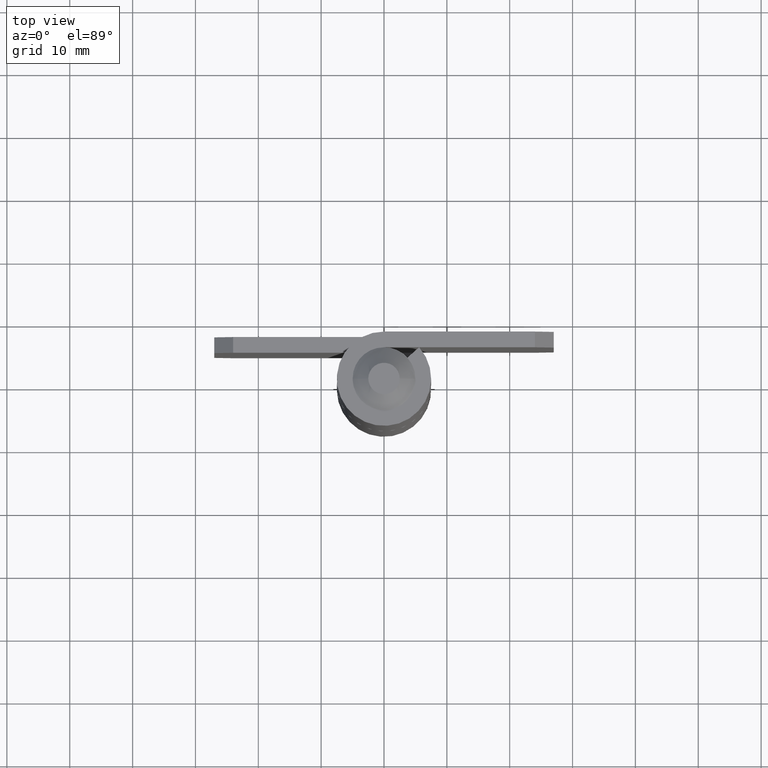
[diagram: clean part render]
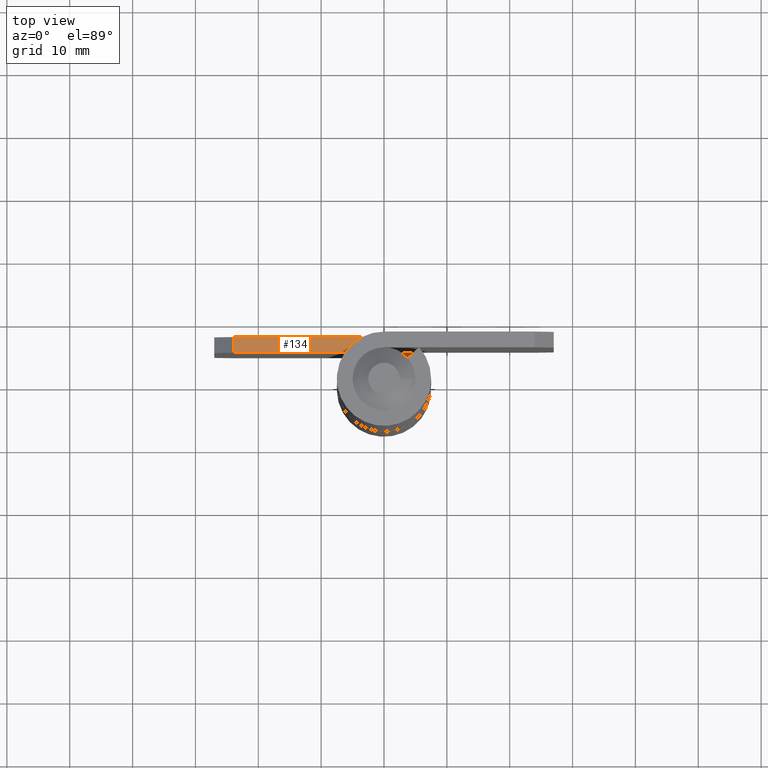
[diagram: same view with one face highlighted and labeled with its STEP entity id]
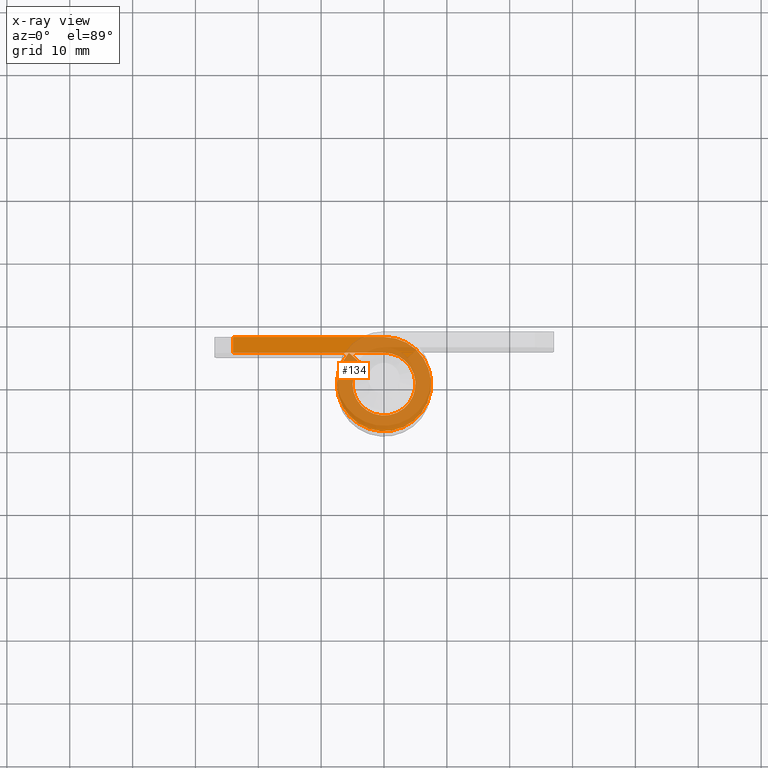
[diagram: x-ray of the same camera — body ghosted, the highlighted face saturated]
A machine part, top view. The second image highlights one B-rep face of the part: STEP entity #134.
The next image is the same camera in x-ray: the body ghosted, the highlighted face saturated — about 64% of this face is hidden behind the body in this view.
In plain terms, the highlighted planar face has unit normal (0, 0, -1).
Its self-contained STEP definition (entity closure, byte-faithful):
#134=ADVANCED_FACE('',(#360),#359,.F.);
#359=PLANE('',#546);
#360=FACE_OUTER_BOUND('',#547,.T.);
#543=CARTESIAN_POINT('',(1.29468851000E+001,-1.29731095773E+001,-1.42108547152E-014));
#544=DIRECTION('',(-0.00000000000E+000,0.00000000000E+000,-1.00000000000E+000));
#545=DIRECTION('',(-1.00000000000E+000,0.00000000000E+000,0.00000000000E+000));
#546=AXIS2_PLACEMENT_3D('',#543,#544,#545);
#547=EDGE_LOOP('',(#674,#675,#676,#677,#678,#679));
#674=ORIENTED_EDGE('',*,*,#750,.F.);
#675=ORIENTED_EDGE('',*,*,#740,.T.);
#676=ORIENTED_EDGE('',*,*,#756,.F.);
#677=ORIENTED_EDGE('',*,*,#757,.F.);
#678=ORIENTED_EDGE('',*,*,#758,.F.);
#679=ORIENTED_EDGE('',*,*,#759,.T.);
#740=EDGE_CURVE('',#1043,#1035,#1044,.T.);
#750=EDGE_CURVE('',#1043,#1110,#1111,.T.);
#756=EDGE_CURVE('',#1150,#1035,#1151,.T.);
#757=EDGE_CURVE('',#1157,#1150,#1158,.T.);
#758=EDGE_CURVE('',#1164,#1157,#1165,.T.);
#759=EDGE_CURVE('',#1164,#1110,#1171,.T.);
#1035=VERTEX_POINT('',#1353);
#1043=VERTEX_POINT('',#1358);
#1044=LINE('',#1359,#1360);
#1110=VERTEX_POINT('',#1395);
#1111=LINE('',#1396,#1397);
#1150=VERTEX_POINT('',#1419);
#1151=LINE('',#1420,#1421);
#1157=VERTEX_POINT('',#1423);
#1158=CIRCLE('',#1427,5.00000000000E+000);
#1164=VERTEX_POINT('',#1428);
#1165=LINE('',#1429,#1430);
#1171=CIRCLE('',#1435,7.50000000000E+000);
#1353=CARTESIAN_POINT('',(-2.40000000000E+001,5.00000000000E+000,-1.42108547152E-014));
#1358=CARTESIAN_POINT('',(-2.40000000000E+001,7.50000000000E+000,-1.42108547152E-014));
#1359=CARTESIAN_POINT('',(-2.40000000000E+001,7.50000000000E+000,-1.42108547152E-014));
#1360=VECTOR('',#1361,2.50000000000E+000);
#1361=DIRECTION('',(0.00000000000E+000,-1.00000000000E+000,0.00000000000E+000));
#1395=CARTESIAN_POINT('',(0.00000000000E+000,7.50000000000E+000,0.00000000000E+000));
#1396=CARTESIAN_POINT('',(-2.40000000000E+001,7.50000000000E+000,-1.42108547152E-014));
#1397=VECTOR('',#1398,2.40000000000E+001);
#1398=DIRECTION('',(1.00000000000E+000,0.00000000000E+000,0.00000000000E+000));
#1419=CARTESIAN_POINT('',(3.06161699787E-016,5.00000000000E+000,0.00000000000E+000));
#1420=CARTESIAN_POINT('',(3.06161699787E-016,5.00000000000E+000,-1.42108547152E-014));
#1421=VECTOR('',#1422,2.40000000000E+001);
#1422=DIRECTION('',(-1.00000000000E+000,0.00000000000E+000,0.00000000000E+000));
#1423=CARTESIAN_POINT('',(-3.72736168215E+000,3.33268283676E+000,0.00000000000E+000));
#1424=CARTESIAN_POINT('',(0.00000000000E+000,0.00000000000E+000,0.00000000000E+000));
#1425=DIRECTION('',(0.00000000000E+000,-0.00000000000E+000,1.00000000000E+000));
#1426=DIRECTION('',(-1.83690953073E-016,1.00000000000E+000,0.00000000000E+000));
#1427=AXIS2_PLACEMENT_3D('',#1424,#1425,#1426);
#1428=CARTESIAN_POINT('',(-5.59104252323E+000,4.99902425514E+000,0.00000000000E+000));
#1429=CARTESIAN_POINT('',(-5.59104252323E+000,4.99902425514E+000,-1.42108547152E-014));
#1430=VECTOR('',#1431,2.50000000000E+000);
#1431=DIRECTION('',(7.45472336430E-001,-6.66536567352E-001,0.00000000000E+000));
#1432=CARTESIAN_POINT('',(0.00000000000E+000,0.00000000000E+000,0.00000000000E+000));
#1433=DIRECTION('',(0.00000000000E+000,-0.00000000000E+000,1.00000000000E+000));
#1434=DIRECTION('',(-1.83690953073E-016,1.00000000000E+000,0.00000000000E+000));
#1435=AXIS2_PLACEMENT_3D('',#1432,#1433,#1434);